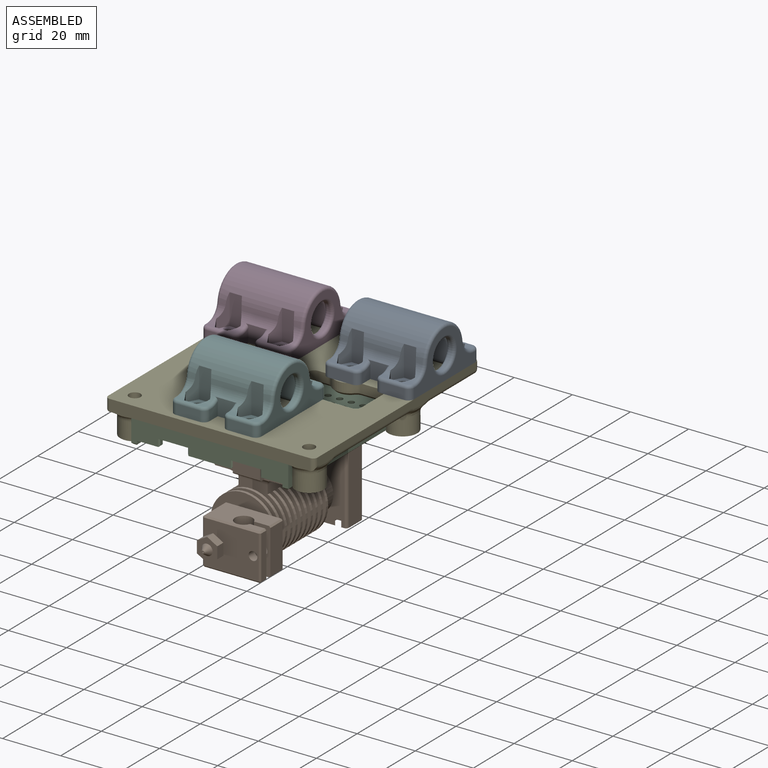
[diagram: assembled view]
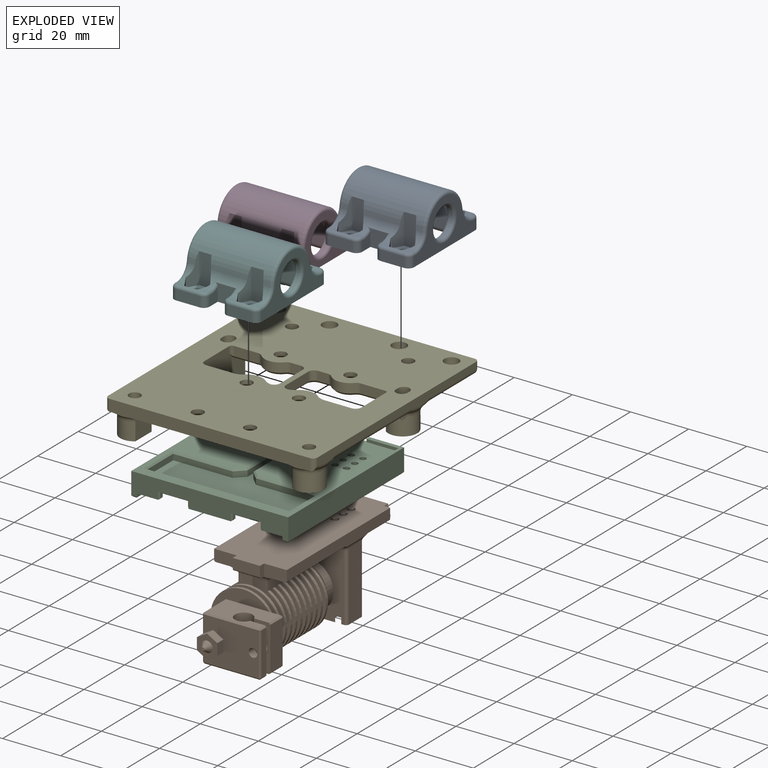
[diagram: exploded view]
GUIDED TOUR — MATED ASSEMBLY WITH SUBASSEMBLIES (Onshape document 13135423dd598dcb33caba63, AutoMate assembly 13135423dd598dcb33caba63_4cbadfacbab7bcc5335eb840_ef56332105294d3836646f49_default)

This assembly has 19 component occurrences arranged in 6 top-level units: 5 individual components plus 1 subassembly (S0). The tour has two levels: first the top level, where each subassembly is treated as one rigid unit; then each subassembly is toured internally in its own section (nesting deeper than one subassembly level is flattened into its subassembly's section).

Components are labeled P0..P18 across the whole record; subassembly units are labeled S0..S0. A mate is a constraint between two units; its type names the relative motion it leaves free:
  FASTENED — locks the two components together rigidly (no relative motion),
  REVOLUTE — leaves rotation about the listed axis free (a hinge),
  SLIDER — leaves translation along the listed axis free.
Axis/direction vectors are unit vectors and 'through' points are millimeter coordinates, both in the assembly's world frame.

TOP-LEVEL MATES (between units; each subassembly's internal mates are listed in its own section)
  1. FASTENED "Fastened 1": P14 <-> P15, direction (0.000, 0.000, 1.000) through (84.69, -9.59, 2.87) mm
  2. FASTENED "Fastened 3": P9 <-> P14, direction (0.000, 0.000, -1.000) through (63.69, 35.41, 2.87) mm
  3. FASTENED "Fastened 2": P0 <-> P14, direction (0.000, 0.000, -1.000) through (105.69, 35.41, 2.87) mm
  4. FASTENED "Fastened 4": P7 <-> P14, direction (0.000, 1.000, 0.000) through (48.69, 16.41, -1.13) mm

TOP-LEVEL ASSEMBLY ORDER
  1. P14 — the base component [order verified]
  2. P7 [order verified]
  3. S0 [order verified]
  4. P15 [order verified]
  5. P9 [order verified]
  6. P0 [order verified]
(S0 verified with a relaxed clearance tolerance: the source model stores slight part interference there.)
Order-tag legend:
  [order verified] — this step's position reverses a verified removal order: the component was checked to insert without passing through the ones already placed.

Of the 19 component occurrences, 9 carry the full construction recipe — the FeatureScript program that regenerates the part's solid from scratch; the rest are supplied as boundary geometry only. Each toured unit is shown spotlighted twice — assembled, then exploded with a leader line back to its socket (green = recipe-attached component, orange = geometry-only, blue = subassembly unit; the rest desaturated gray).
NOTE — document 2 of 2 of this assembly tour. The two overview renders and the header above are repeated from document 1; the component sections below continue where the previous document stopped.
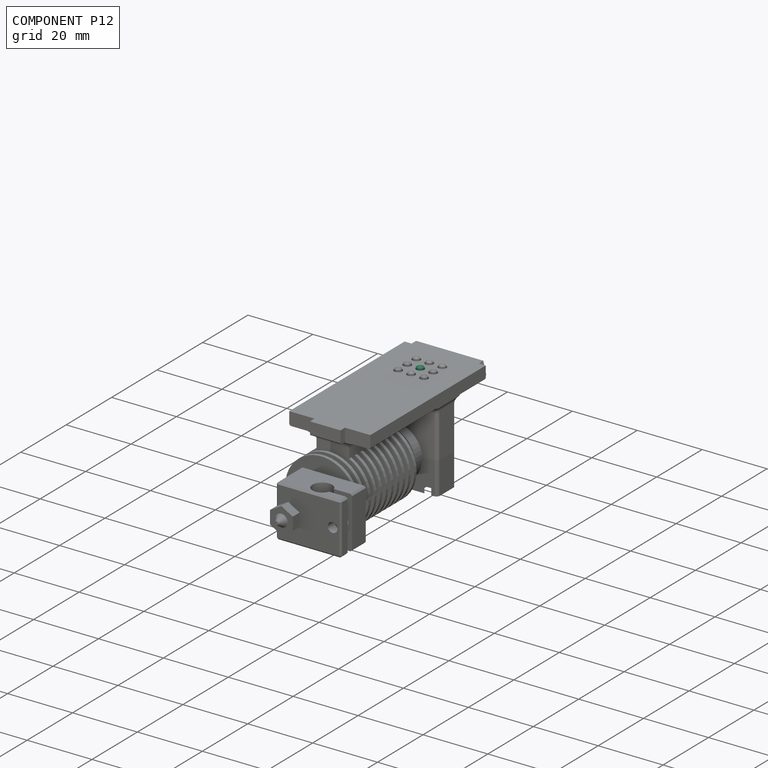
[diagram: component P12 — assembled]
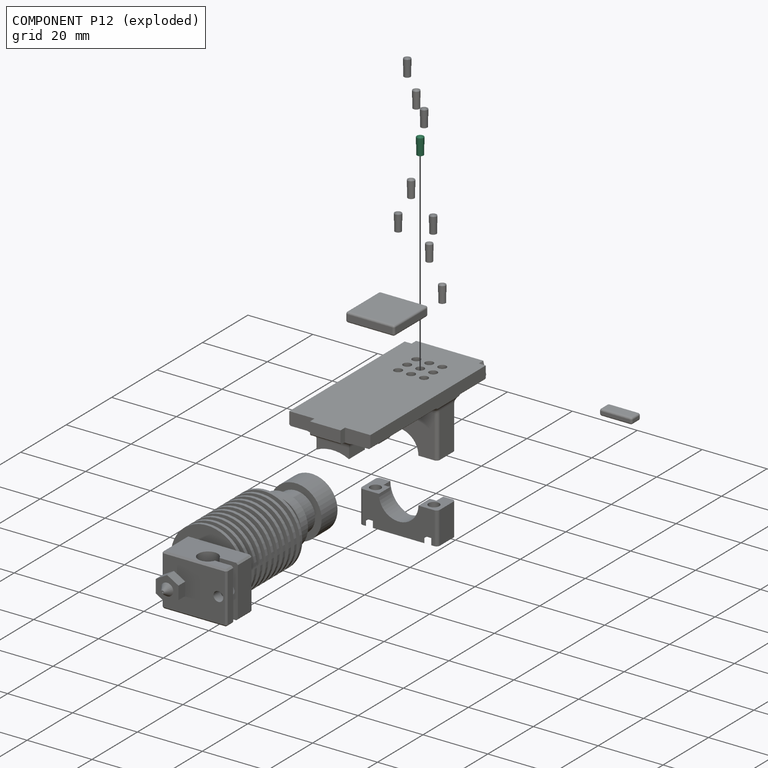
[diagram: component P12 — exploded]
COMPONENT P12 — same part as P3 (CADFS 00180591); its construction recipe is shown at P3.
Held by: FASTENED mate "Fastened 3" to P13; FASTENED mate "Fastened 3" to P13.
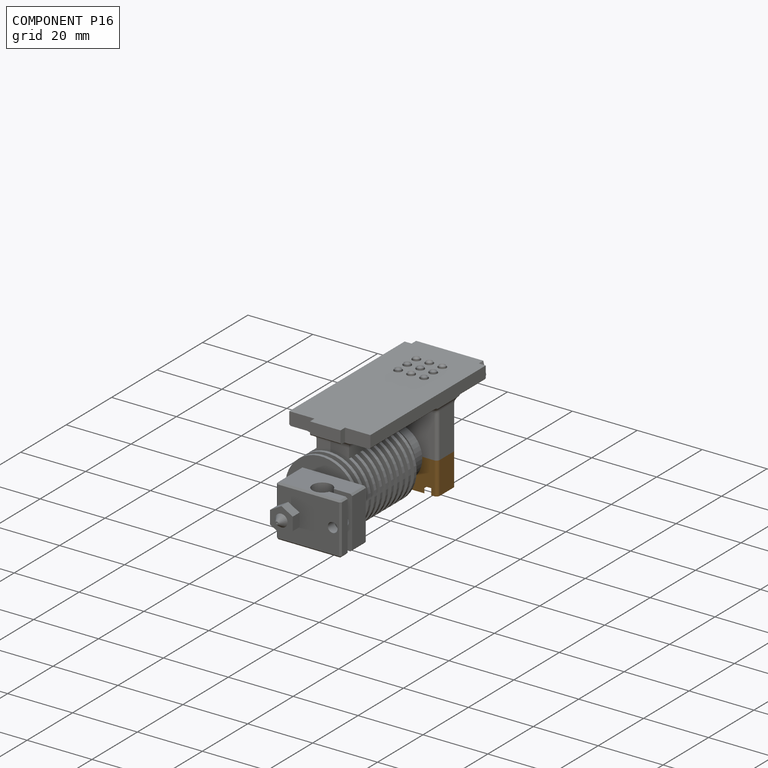
[diagram: component P16 — assembled]
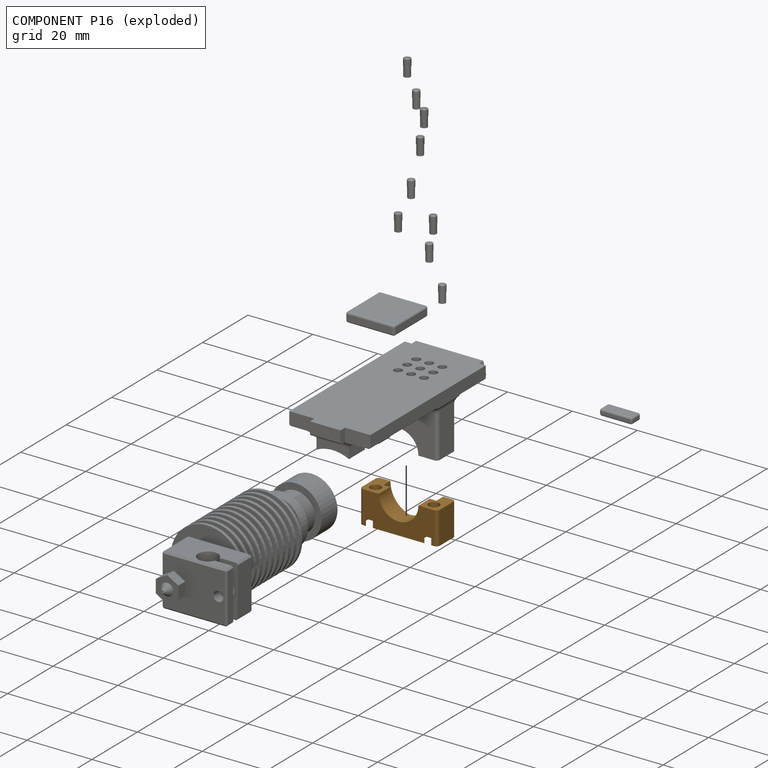
[diagram: component P16 — exploded]
COMPONENT P16 — geometry summary (no construction recipe available for this part):
  bounding box: 24.0 x 10.0 x 8.0 mm
  B-rep topology: 1 solid, 20 faces, 108 edges
  volume: 1065 mm^3 (55% of its bounding box)
  symmetry: mirror-symmetric across its x mid-plane
Held by: SLIDER mate "Slider 1" to P13; SLIDER mate "Slider 1" to P13.
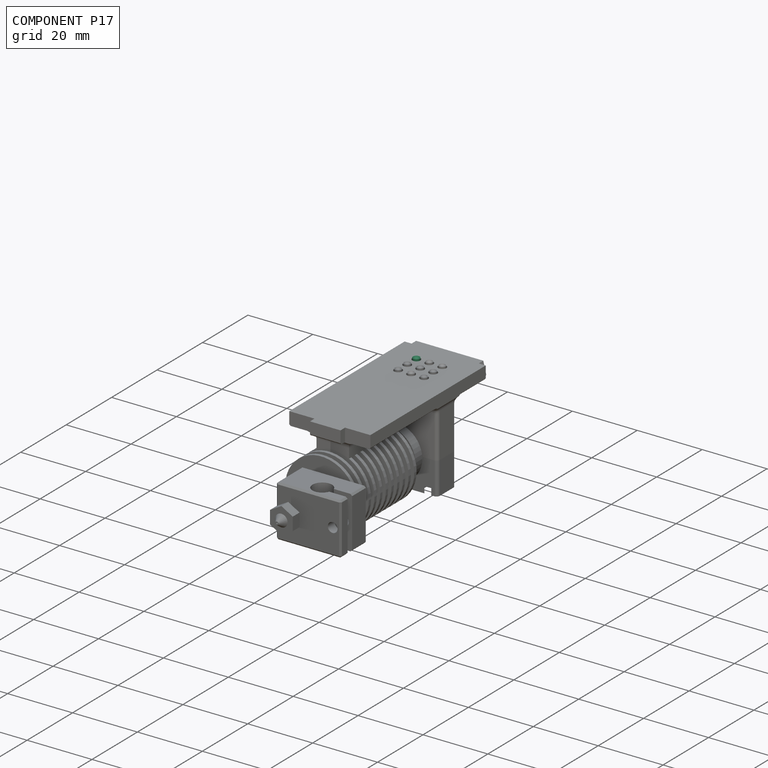
[diagram: component P17 — assembled]
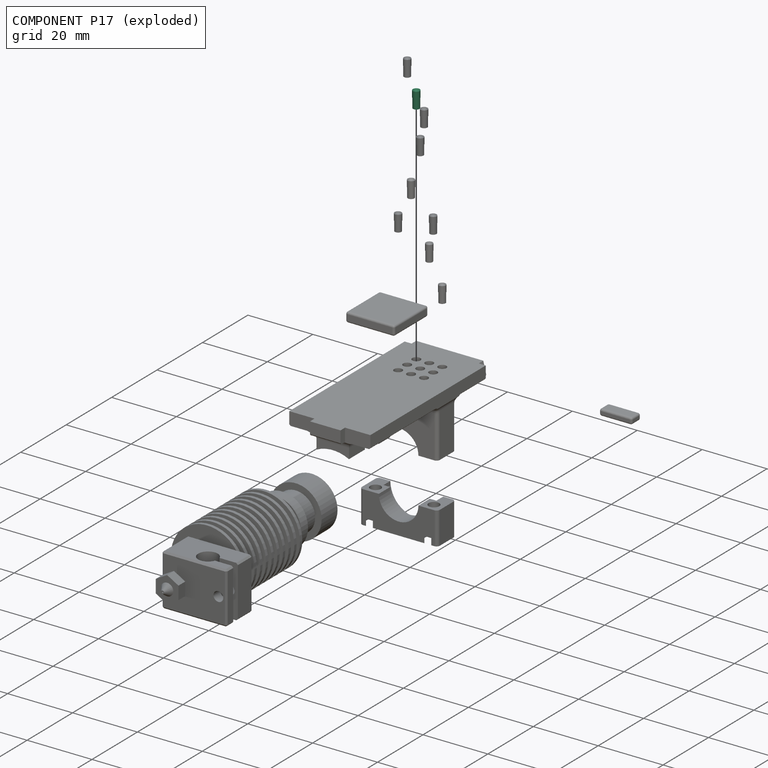
[diagram: component P17 — exploded]
COMPONENT P17 — same part as P3 (CADFS 00180591); its construction recipe is shown at P3.
Held by: FASTENED mate "Fastened 3" to P13; FASTENED mate "Fastened 3" to P13.
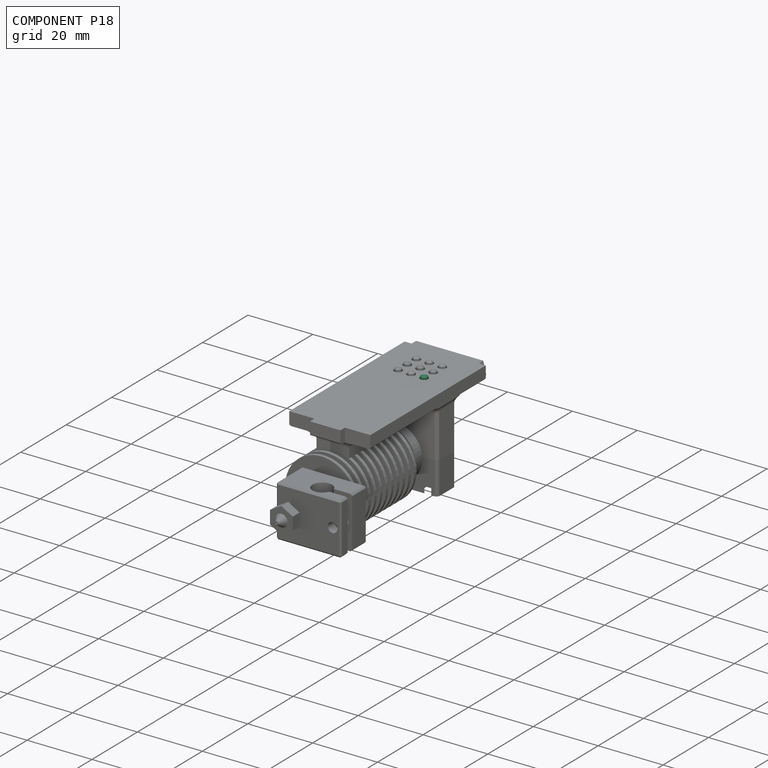
[diagram: component P18 — assembled]
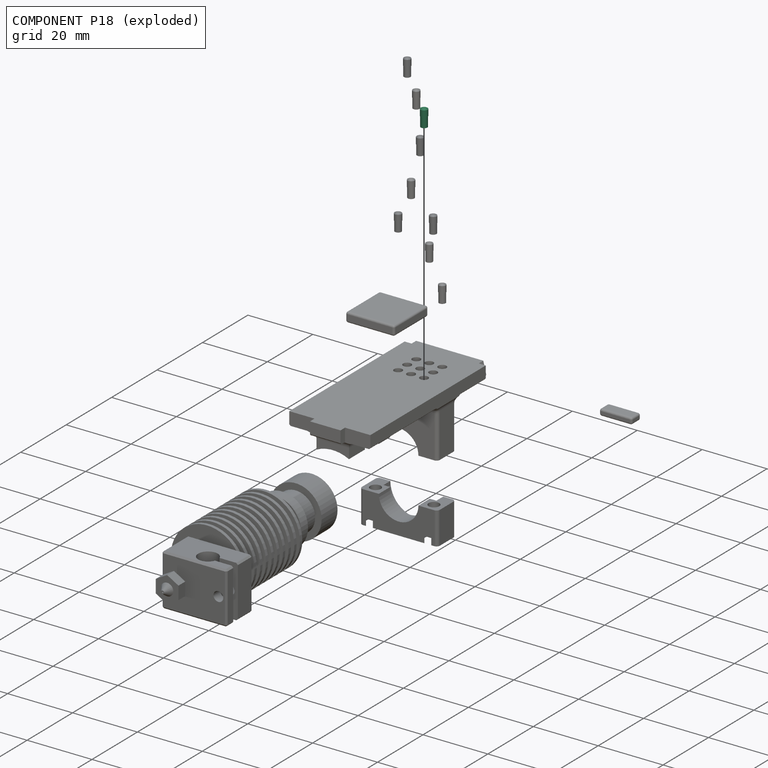
[diagram: component P18 — exploded]
COMPONENT P18 — same part as P3 (CADFS 00180591); its construction recipe is shown at P3.
Held by: FASTENED mate "Fastened 3" to P13; FASTENED mate "Fastened 3" to P13.
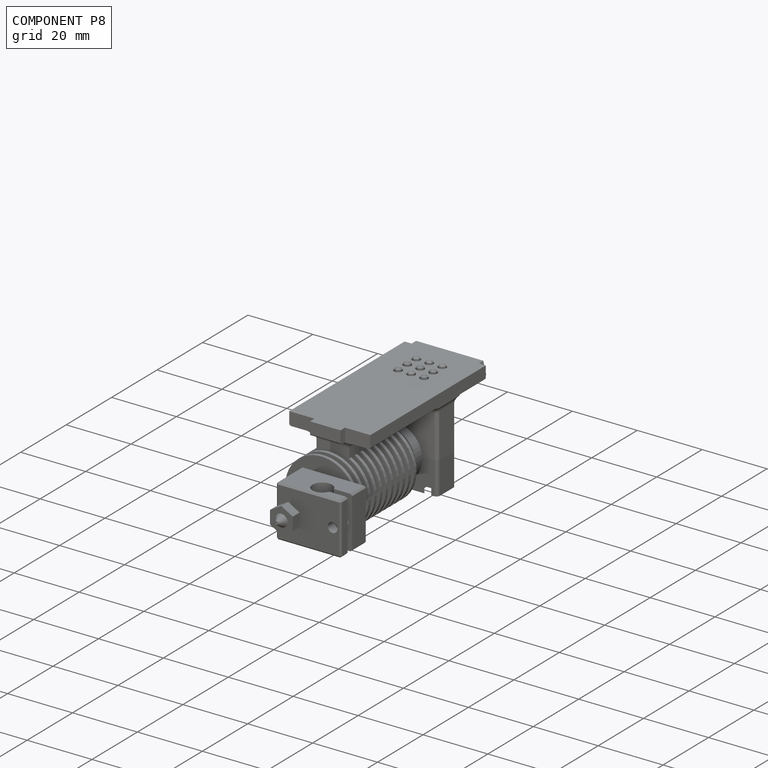
[diagram: component P8 — assembled]
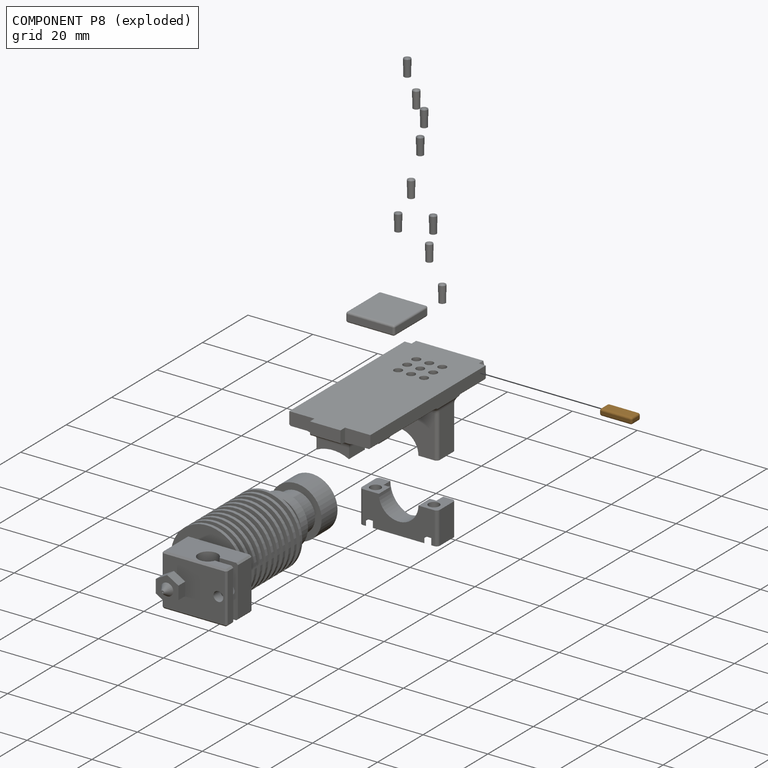
[diagram: component P8 — exploded]
COMPONENT P8 — geometry summary (no construction recipe available for this part):
  bounding box: 10.0 x 4.0 x 2.0 mm
  B-rep topology: 1 solid, 26 faces, 104 edges
  volume: 75 mm^3 (94% of its bounding box)
  symmetry: 2-fold rotationally symmetric about the x axis; 2-fold rotationally symmetric about the y axis; 2-fold rotationally symmetric about the z axis; mirror-symmetric across its x mid-plane, y mid-plane, z mid-plane
Held by: FASTENED mate "Fastened 2" to P13; FASTENED mate "Fastened 2" to P13.
PROVENANCE & LICENSES
Assembly (occurrences, transforms, mates, per-part STEP geometry): AutoMate dataset, Zenodo record 7776208, CC0.
Construction recipes: CADFS (HuggingFace VladPyatov/CADFS, CC-BY-4.0, layered over the ABC dataset), FeatureScript reconstruction programs keyed by ABC model id.
Join: ABC meta listings map ABC model id -> Onshape documentId; within a shared document, parts are matched by geometric signature (bounding-box dims + volume at 0.1% relative tolerance, exact B-rep face/solid counts).
Verification: 9 of this assembly's 19 components carry a recipe attachment, and every attachment is mesh-verified: the CADFS STEP and the AutoMate member STEP were compared as meshes in their shared local frame (symmetric sampled-point-to-mesh distance); worst across the 9 attachments: below the mesh-comparison resolution (tessellation chordal tolerance ~0.00877 mm) on a 6 mm part.
Renders: orthographic iso camera (az 35 / el 25); the floor grid conveys scale (grid pitch printed in each image; no ruler). In the exploded view each component is displaced by its stored offset vector: the offsets alone carry the explosion direction (mate normal/axis signs are not orientation cues and do not encode it), and separation distances are assigned per mate-chain, not proportionally to assembly-order depth.
